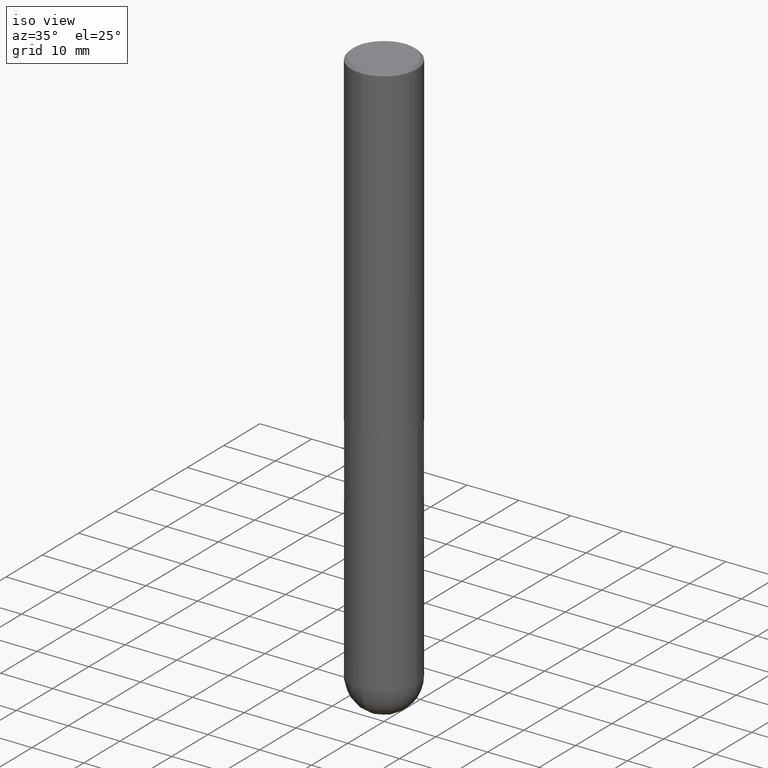
[diagram: clean part render]
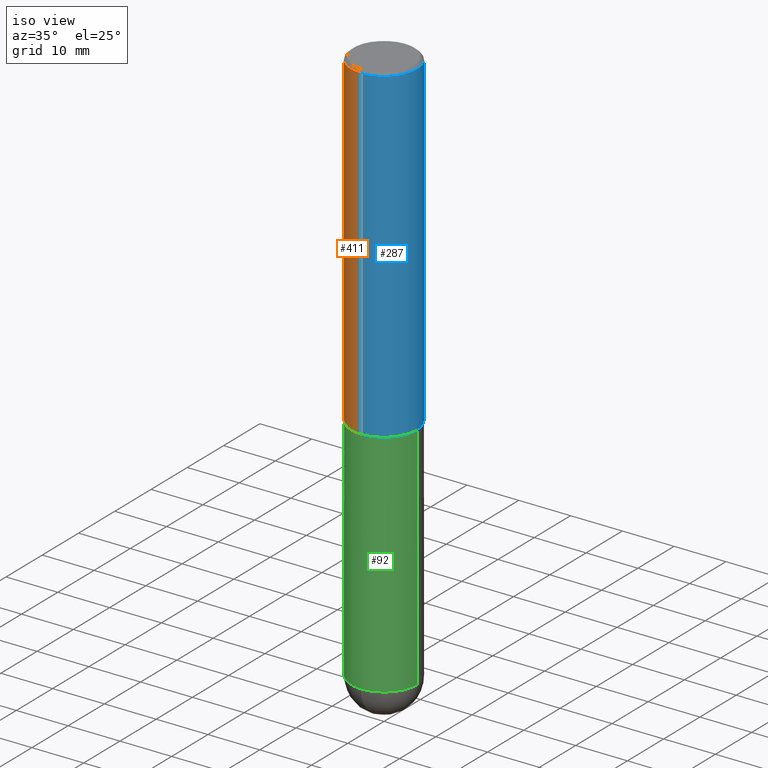
[diagram: same view with three faces highlighted in distinct colors, each labeled with its STEP entity id]
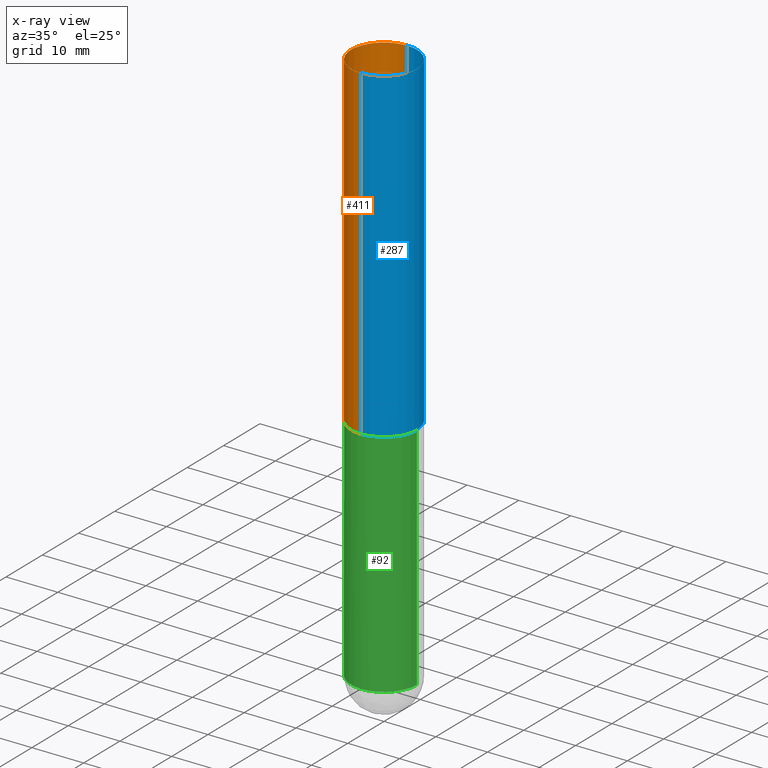
[diagram: x-ray of the same camera — body ghosted, the three highlighted faces saturated]
A machine part, iso view with three faces highlighted in distinct colors.
The next image is the same camera in x-ray (body ghosted, the three faces saturated) — at least one of them is partly hidden behind the body in this view.
Their STEP definitions:

[orange] entity #411 — the highlighted cylindrical surface (partial cylindrical patch) has radius 6.35 mm, axis along (-0, 0, 1).
#23 = DIRECTION ( 'NONE',  ( -6.982962677686265922E-15, -1.000000000000000000, 4.370956789862816416E-15 ) ) ;
#25 = CIRCLE ( 'NONE', #178, 0.2500000000000000000 ) ;
#29 = CARTESIAN_POINT ( 'NONE',  ( 1.776356839400251254E-15, 0.2500000000000001110, -8.729819431715811349E-16 ) ) ;
#39 = EDGE_CURVE ( 'NONE', #129, #184, #196, .T. ) ;
#44 = CARTESIAN_POINT ( 'NONE',  ( -1.715124499442882299E-15, -0.2500000000000000555, -0.01999999999999918163 ) ) ;
#51 = CARTESIAN_POINT ( 'NONE',  ( 0.000000000000000000, 0.000000000000000000, 0.000000000000000000 ) ) ;
#56 = VERTEX_POINT ( 'NONE', #44 ) ;
#58 = EDGE_LOOP ( 'NONE', ( #245, #403, #157, #89 ) ) ;
#86 = FACE_OUTER_BOUND ( 'NONE', #58, .T. ) ;
#89 = ORIENTED_EDGE ( 'NONE', *, *, #104, .F. ) ;
#100 = DIRECTION ( 'NONE',  ( -2.445157063098640632E-29, 3.491927772686322173E-15, 1.000000000000000000 ) ) ;
#104 = EDGE_CURVE ( 'NONE', #184, #56, #25, .T. ) ;
#111 = CARTESIAN_POINT ( 'NONE',  ( 4.890314126197295628E-31, -6.983855545372664265E-17, -0.02000000000000005593 ) ) ;
#119 = CARTESIAN_POINT ( 'NONE',  ( 6.110447500683504072E-29, -8.726327503943120838E-15, -2.499000000000000110 ) ) ;
#129 = VERTEX_POINT ( 'NONE', #327 ) ;
#148 = DIRECTION ( 'NONE',  ( -2.445157063098640632E-29, 3.491927772686322567E-15, 1.000000000000000000 ) ) ;
#151 = DIRECTION ( 'NONE',  ( -2.445157063098640632E-29, 3.491927772686322173E-15, 1.000000000000000000 ) ) ;
#154 = CIRCLE ( 'NONE', #218, 0.2500000000000002776 ) ;
#157 = ORIENTED_EDGE ( 'NONE', *, *, #337, .T. ) ;
#158 = DIRECTION ( 'NONE',  ( -2.445157063098640632E-29, 3.491927772686322567E-15, 1.000000000000000000 ) ) ;
#161 = CARTESIAN_POINT ( 'NONE',  ( -1.745740669421567467E-15, -0.2500000000000001110, 8.729819431715811349E-16 ) ) ;
#165 = VECTOR ( 'NONE', #100, 39.37007874015748143 ) ;
#178 = AXIS2_PLACEMENT_3D ( 'NONE', #111, #148, #399 ) ;
#183 = DIRECTION ( 'NONE',  ( -2.445157063098640632E-29, 3.491927772686322567E-15, 1.000000000000000000 ) ) ;
#184 = VERTEX_POINT ( 'NONE', #267 ) ;
#196 = LINE ( 'NONE', #29, #165 ) ;
#212 = CYLINDRICAL_SURFACE ( 'NONE', #390, 0.2500000000000001110 ) ;
#218 = AXIS2_PLACEMENT_3D ( 'NONE', #119, #158, #23 ) ;
#245 = ORIENTED_EDGE ( 'NONE', *, *, #39, .F. ) ;
#267 = CARTESIAN_POINT ( 'NONE',  ( 1.745740669421566875E-15, 0.2499999999999999167, -0.02000000000000093023 ) ) ;
#274 = VECTOR ( 'NONE', #151, 39.37007874015748143 ) ;
#281 = LINE ( 'NONE', #161, #274 ) ;
#305 = DIRECTION ( 'NONE',  ( -6.982962677686266711E-15, -1.000000000000000000, 3.491927772686322962E-15 ) ) ;
#313 = CARTESIAN_POINT ( 'NONE',  ( -1.745740669421507316E-15, -0.2500000000000089928, -2.498999999999999222 ) ) ;
#314 = VERTEX_POINT ( 'NONE', #313 ) ;
#324 = EDGE_CURVE ( 'NONE', #129, #314, #154, .T. ) ;
#327 = CARTESIAN_POINT ( 'NONE',  ( 1.776356839400282414E-15, 0.2499999999999915345, -2.499000000000001442 ) ) ;
#337 = EDGE_CURVE ( 'NONE', #314, #56, #281, .T. ) ;
#390 = AXIS2_PLACEMENT_3D ( 'NONE', #51, #183, #305 ) ;
#399 = DIRECTION ( 'NONE',  ( -6.982962677686265922E-15, -1.000000000000000000, 3.500180241882337261E-15 ) ) ;
#403 = ORIENTED_EDGE ( 'NONE', *, *, #324, .T. ) ;
#411 = ADVANCED_FACE ( 'NONE', ( #86 ), #212, .T. ) ;

[blue] entity #287 — the highlighted cylindrical surface (partial cylindrical patch) has radius 6.35 mm, axis along (-0, 0, 1).
#26 = AXIS2_PLACEMENT_3D ( 'NONE', #277, #215, #344 ) ;
#29 = CARTESIAN_POINT ( 'NONE',  ( 1.776356839400251254E-15, 0.2500000000000001110, -8.729819431715811349E-16 ) ) ;
#39 = EDGE_CURVE ( 'NONE', #129, #184, #196, .T. ) ;
#42 = AXIS2_PLACEMENT_3D ( 'NONE', #156, #247, #188 ) ;
#44 = CARTESIAN_POINT ( 'NONE',  ( -1.715124499442882299E-15, -0.2500000000000000555, -0.01999999999999918163 ) ) ;
#56 = VERTEX_POINT ( 'NONE', #44 ) ;
#100 = DIRECTION ( 'NONE',  ( -2.445157063098640632E-29, 3.491927772686322173E-15, 1.000000000000000000 ) ) ;
#118 = CIRCLE ( 'NONE', #127, 0.2500000000000002776 ) ;
#122 = ORIENTED_EDGE ( 'NONE', *, *, #246, .F. ) ;
#127 = AXIS2_PLACEMENT_3D ( 'NONE', #275, #219, #128 ) ;
#128 = DIRECTION ( 'NONE',  ( -6.982962677686265922E-15, -1.000000000000000000, 4.370956789862816416E-15 ) ) ;
#129 = VERTEX_POINT ( 'NONE', #327 ) ;
#151 = DIRECTION ( 'NONE',  ( -2.445157063098640632E-29, 3.491927772686322173E-15, 1.000000000000000000 ) ) ;
#156 = CARTESIAN_POINT ( 'NONE',  ( 0.000000000000000000, 0.000000000000000000, 0.000000000000000000 ) ) ;
#161 = CARTESIAN_POINT ( 'NONE',  ( -1.745740669421567467E-15, -0.2500000000000001110, 8.729819431715811349E-16 ) ) ;
#165 = VECTOR ( 'NONE', #100, 39.37007874015748143 ) ;
#171 = EDGE_LOOP ( 'NONE', ( #202, #217, #122, #406 ) ) ;
#173 = CIRCLE ( 'NONE', #26, 0.2500000000000000000 ) ;
#184 = VERTEX_POINT ( 'NONE', #267 ) ;
#188 = DIRECTION ( 'NONE',  ( -6.982962677686266711E-15, -1.000000000000000000, 3.491927772686322962E-15 ) ) ;
#196 = LINE ( 'NONE', #29, #165 ) ;
#202 = ORIENTED_EDGE ( 'NONE', *, *, #364, .T. ) ;
#215 = DIRECTION ( 'NONE',  ( -2.445157063098640632E-29, 3.491927772686322567E-15, 1.000000000000000000 ) ) ;
#217 = ORIENTED_EDGE ( 'NONE', *, *, #39, .T. ) ;
#219 = DIRECTION ( 'NONE',  ( -2.445157063098640632E-29, 3.491927772686322567E-15, 1.000000000000000000 ) ) ;
#246 = EDGE_CURVE ( 'NONE', #56, #184, #173, .T. ) ;
#247 = DIRECTION ( 'NONE',  ( -2.445157063098640632E-29, 3.491927772686322567E-15, 1.000000000000000000 ) ) ;
#267 = CARTESIAN_POINT ( 'NONE',  ( 1.745740669421566875E-15, 0.2499999999999999167, -0.02000000000000093023 ) ) ;
#274 = VECTOR ( 'NONE', #151, 39.37007874015748143 ) ;
#275 = CARTESIAN_POINT ( 'NONE',  ( 6.110447500683504072E-29, -8.726327503943120838E-15, -2.499000000000000110 ) ) ;
#277 = CARTESIAN_POINT ( 'NONE',  ( 4.890314126197295628E-31, -6.983855545372664265E-17, -0.02000000000000005593 ) ) ;
#281 = LINE ( 'NONE', #161, #274 ) ;
#287 = ADVANCED_FACE ( 'NONE', ( #310 ), #405, .T. ) ;
#310 = FACE_OUTER_BOUND ( 'NONE', #171, .T. ) ;
#313 = CARTESIAN_POINT ( 'NONE',  ( -1.745740669421507316E-15, -0.2500000000000089928, -2.498999999999999222 ) ) ;
#314 = VERTEX_POINT ( 'NONE', #313 ) ;
#327 = CARTESIAN_POINT ( 'NONE',  ( 1.776356839400282414E-15, 0.2499999999999915345, -2.499000000000001442 ) ) ;
#337 = EDGE_CURVE ( 'NONE', #314, #56, #281, .T. ) ;
#344 = DIRECTION ( 'NONE',  ( -6.982962677686265922E-15, -1.000000000000000000, 3.500180241882337261E-15 ) ) ;
#364 = EDGE_CURVE ( 'NONE', #314, #129, #118, .T. ) ;
#405 = CYLINDRICAL_SURFACE ( 'NONE', #42, 0.2500000000000001110 ) ;
#406 = ORIENTED_EDGE ( 'NONE', *, *, #337, .F. ) ;

[green] entity #92 — the highlighted cylindrical surface (partial cylindrical patch) has radius 6.35 mm, axis along (-0, 0, 1).
#10 = CYLINDRICAL_SURFACE ( 'NONE', #334, 0.2500000000000000000 ) ;
#11 = DIRECTION ( 'NONE',  ( 1.000000000000000000, -6.982962677686266711E-15, 0.000000000000000000 ) ) ;
#18 = ORIENTED_EDGE ( 'NONE', *, *, #168, .F. ) ;
#19 = CIRCLE ( 'NONE', #257, 0.2500000000000000000 ) ;
#31 = ORIENTED_EDGE ( 'NONE', *, *, #123, .T. ) ;
#34 = VERTEX_POINT ( 'NONE', #63 ) ;
#49 = DIRECTION ( 'NONE',  ( 1.000000000000000000, -6.982962677686270655E-15, 0.000000000000000000 ) ) ;
#60 = ORIENTED_EDGE ( 'NONE', *, *, #204, .T. ) ;
#63 = CARTESIAN_POINT ( 'NONE',  ( 0.2500000000000000000, -1.047444401652943162E-14, -2.500000000000000000 ) ) ;
#76 = CARTESIAN_POINT ( 'NONE',  ( 0.2500000000000000000, -1.745740669421566678E-15, 1.219044193948983948E-29 ) ) ;
#78 = EDGE_CURVE ( 'NONE', #98, #377, #369, .T. ) ;
#79 = DIRECTION ( 'NONE',  ( 1.000000000000000000, -6.982962677686266711E-15, 4.876176775795935793E-29 ) ) ;
#83 = CARTESIAN_POINT ( 'NONE',  ( 1.039324242628683054E-28, -1.483879569008337040E-14, -4.250000000000000000 ) ) ;
#91 = AXIS2_PLACEMENT_3D ( 'NONE', #83, #335, #49 ) ;
#92 = ADVANCED_FACE ( 'NONE', ( #272 ), #10, .T. ) ;
#98 = VERTEX_POINT ( 'NONE', #400 ) ;
#114 = CARTESIAN_POINT ( 'NONE',  ( -1.776356839400148307E-15, -0.2500000000000151545, -4.249999999999999112 ) ) ;
#121 = DIRECTION ( 'NONE',  ( 1.000000000000000000, -6.982962677686270655E-15, 0.000000000000000000 ) ) ;
#123 = EDGE_CURVE ( 'NONE', #356, #34, #397, .T. ) ;
#168 = EDGE_CURVE ( 'NONE', #377, #34, #256, .T. ) ;
#174 = DIRECTION ( 'NONE',  ( -2.445468806185136877E-29, 3.491481338843145188E-15, 1.000000000000000000 ) ) ;
#189 = ORIENTED_EDGE ( 'NONE', *, *, #78, .F. ) ;
#201 = VERTEX_POINT ( 'NONE', #114 ) ;
#203 = DIRECTION ( 'NONE',  ( -2.445468806185136877E-29, 3.491481338843145188E-15, 1.000000000000000000 ) ) ;
#204 = EDGE_CURVE ( 'NONE', #201, #356, #223, .T. ) ;
#206 = CARTESIAN_POINT ( 'NONE',  ( 0.000000000000000000, 0.000000000000000000, 0.000000000000000000 ) ) ;
#211 = CARTESIAN_POINT ( 'NONE',  ( 6.113672015462842613E-29, -8.728703347107864943E-15, -2.500000000000000000 ) ) ;
#223 = CIRCLE ( 'NONE', #91, 0.2500000000000000000 ) ;
#233 = ORIENTED_EDGE ( 'NONE', *, *, #354, .T. ) ;
#251 = AXIS2_PLACEMENT_3D ( 'NONE', #211, #366, #11 ) ;
#256 = CIRCLE ( 'NONE', #251, 0.2500000000000000000 ) ;
#257 = AXIS2_PLACEMENT_3D ( 'NONE', #410, #402, #121 ) ;
#270 = DIRECTION ( 'NONE',  ( -2.445468806185136597E-29, 3.491481338843145583E-15, 1.000000000000000000 ) ) ;
#272 = FACE_OUTER_BOUND ( 'NONE', #319, .T. ) ;
#319 = EDGE_LOOP ( 'NONE', ( #189, #233, #60, #31, #18 ) ) ;
#334 = AXIS2_PLACEMENT_3D ( 'NONE', #206, #270, #79 ) ;
#335 = DIRECTION ( 'NONE',  ( -2.445468806185136597E-29, 3.491481338843145583E-15, 1.000000000000000000 ) ) ;
#347 = CARTESIAN_POINT ( 'NONE',  ( -0.2500000000000000000, -1.000739267919536563E-14, -2.500000000000000000 ) ) ;
#348 = VECTOR ( 'NONE', #203, 39.37007874015748143 ) ;
#354 = EDGE_CURVE ( 'NONE', #98, #201, #19, .T. ) ;
#355 = VECTOR ( 'NONE', #174, 39.37007874015748143 ) ;
#356 = VERTEX_POINT ( 'NONE', #376 ) ;
#366 = DIRECTION ( 'NONE',  ( -2.445468806185136597E-29, 3.491481338843145583E-15, 1.000000000000000000 ) ) ;
#369 = LINE ( 'NONE', #392, #355 ) ;
#376 = CARTESIAN_POINT ( 'NONE',  ( 0.2500000000000000000, -1.352949018801718751E-14, -4.250000000000000000 ) ) ;
#377 = VERTEX_POINT ( 'NONE', #347 ) ;
#392 = CARTESIAN_POINT ( 'NONE',  ( -0.2500000000000000000, 1.776356839400250465E-15, -1.229733772563726445E-29 ) ) ;
#397 = LINE ( 'NONE', #76, #348 ) ;
#400 = CARTESIAN_POINT ( 'NONE',  ( -0.2500000000000000000, -1.000739267919536879E-14, -4.250000000000000000 ) ) ;
#402 = DIRECTION ( 'NONE',  ( -2.445468806185136597E-29, 3.491481338843145583E-15, 1.000000000000000000 ) ) ;
#410 = CARTESIAN_POINT ( 'NONE',  ( 1.039324242628683054E-28, -1.483879569008337040E-14, -4.250000000000000000 ) ) ;